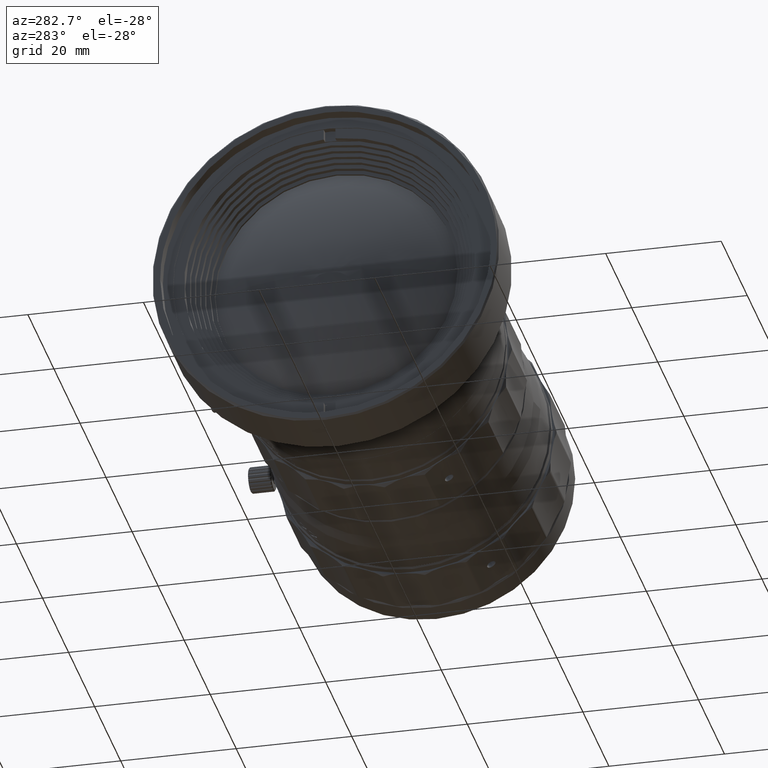
[diagram: clean part render]
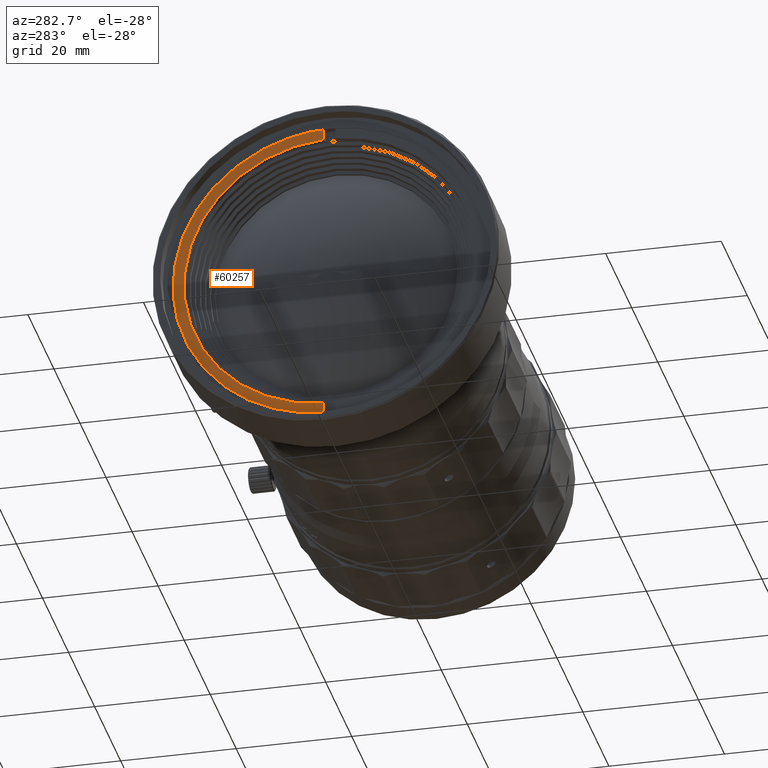
[diagram: same view with one face highlighted and labeled with its STEP entity id]
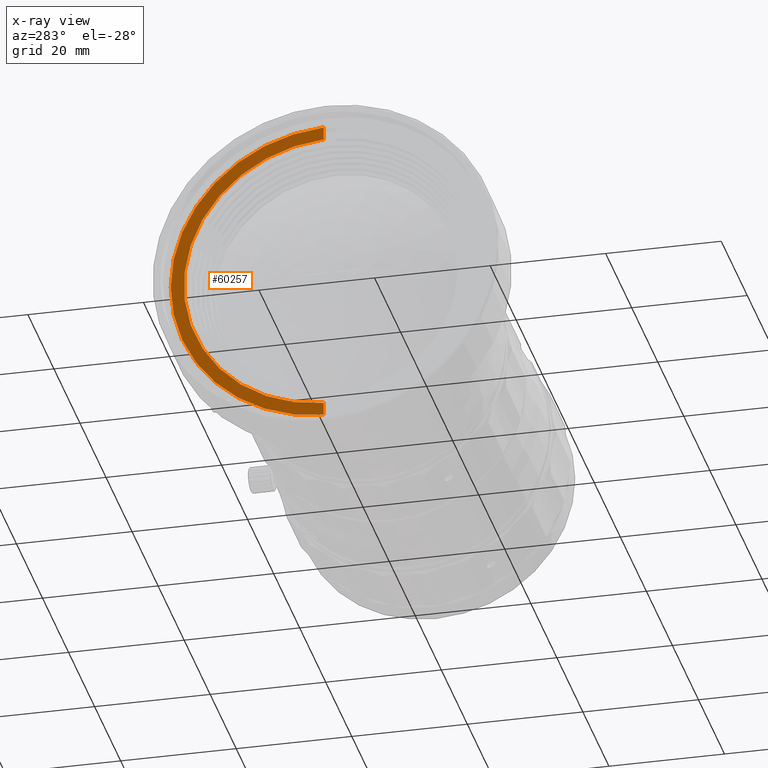
[diagram: x-ray of the same camera — body ghosted, the highlighted face saturated]
A machine part, auxiliary view. The second image highlights one B-rep face of the part: STEP entity #60257.
The next image is the same camera in x-ray: the body ghosted, the highlighted face saturated — about 0% of this face is hidden behind the body in this view.
In plain terms, the highlighted planar face has unit normal (1, 0, 0).
Its self-contained STEP definition (entity closure, byte-faithful):
#6 = ORIENTED_EDGE ( 'NONE', *, *, #10777, .F. ) ;
#2775 = CARTESIAN_POINT ( 'NONE',  ( -5.819999999999999396, 1.000000000000001332, 0.000000000000000000 ) ) ;
#3311 = PLANE ( 'NONE',  #34166 ) ;
#7734 = CARTESIAN_POINT ( 'NONE',  ( -5.819999999999999396, 0.000000000000000000, 0.000000000000000000 ) ) ;
#9796 = EDGE_CURVE ( 'NONE', #41501, #19603, #35915, .T. ) ;
#10777 = EDGE_CURVE ( 'NONE', #19603, #77924, #83191, .T. ) ;
#11669 = EDGE_LOOP ( 'NONE', ( #76307, #31312, #6, #84249 ) ) ;
#11713 = EDGE_CURVE ( 'NONE', #64218, #41501, #65163, .T. ) ;
#14234 = CARTESIAN_POINT ( 'NONE',  ( -5.819999999999999396, 1.000000000000001332, 0.000000000000000000 ) ) ;
#19603 = VERTEX_POINT ( 'NONE', #28845 ) ;
#21216 = DIRECTION ( 'NONE',  ( 0.000000000000000000, 0.000000000000000000, -1.000000000000000000 ) ) ;
#23704 = CARTESIAN_POINT ( 'NONE',  ( -5.819999999999999396, 0.000000000000000000, 0.000000000000000000 ) ) ;
#24677 = VECTOR ( 'NONE', #34206, 1000.000000000000000 ) ;
#27381 = DIRECTION ( 'NONE',  ( 0.000000000000000000, 0.000000000000000000, -1.000000000000000000 ) ) ;
#28236 = DIRECTION ( 'NONE',  ( 1.000000000000000000, -0.000000000000000000, 0.000000000000000000 ) ) ;
#28845 = CARTESIAN_POINT ( 'NONE',  ( -5.819999999999999396, 1.000000000000025091, 25.18015091297111496 ) ) ;
#29916 = CARTESIAN_POINT ( 'NONE',  ( -5.819999999999999396, 28.03000000000000114, 28.58108465401999609 ) ) ;
#31312 = ORIENTED_EDGE ( 'NONE', *, *, #79833, .F. ) ;
#33672 = CARTESIAN_POINT ( 'NONE',  ( -5.819999999999999396, 1.000000000000046629, -27.48181216732258747 ) ) ;
#34166 = AXIS2_PLACEMENT_3D ( 'NONE', #29916, #81800, #83099 ) ;
#34206 = DIRECTION ( 'NONE',  ( 0.000000000000000000, 0.000000000000000000, -1.000000000000000000 ) ) ;
#35582 = FACE_OUTER_BOUND ( 'NONE', #11669, .T. ) ;
#35915 = LINE ( 'NONE', #2775, #24677 ) ;
#41501 = VERTEX_POINT ( 'NONE', #58815 ) ;
#45606 = AXIS2_PLACEMENT_3D ( 'NONE', #23704, #76894, #56401 ) ;
#46074 = VECTOR ( 'NONE', #21216, 1000.000000000000000 ) ;
#56401 = DIRECTION ( 'NONE',  ( 0.000000000000000000, 0.000000000000000000, -1.000000000000000000 ) ) ;
#58815 = CARTESIAN_POINT ( 'NONE',  ( -5.819999999999999396, 1.000000000000052847, 27.48181216732258747 ) ) ;
#60257 = ADVANCED_FACE ( 'NONE', ( #35582 ), #3311, .F. ) ;
#64218 = VERTEX_POINT ( 'NONE', #33672 ) ;
#65163 = CIRCLE ( 'NONE', #73491, 27.50000000000000000 ) ;
#73245 = CARTESIAN_POINT ( 'NONE',  ( -5.819999999999999396, 1.000000000000000666, -25.18015091297055719 ) ) ;
#73491 = AXIS2_PLACEMENT_3D ( 'NONE', #7734, #28236, #27381 ) ;
#73567 = LINE ( 'NONE', #14234, #46074 ) ;
#76307 = ORIENTED_EDGE ( 'NONE', *, *, #11713, .F. ) ;
#76894 = DIRECTION ( 'NONE',  ( -1.000000000000000000, 0.000000000000000000, -0.000000000000000000 ) ) ;
#77924 = VERTEX_POINT ( 'NONE', #73245 ) ;
#79833 = EDGE_CURVE ( 'NONE', #77924, #64218, #73567, .T. ) ;
#81800 = DIRECTION ( 'NONE',  ( 1.000000000000000000, 0.000000000000000000, 0.000000000000000000 ) ) ;
#83099 = DIRECTION ( 'NONE',  ( 0.000000000000000000, -1.000000000000000000, 0.000000000000000000 ) ) ;
#83191 = CIRCLE ( 'NONE', #45606, 25.19999999999999929 ) ;
#84249 = ORIENTED_EDGE ( 'NONE', *, *, #9796, .F. ) ;